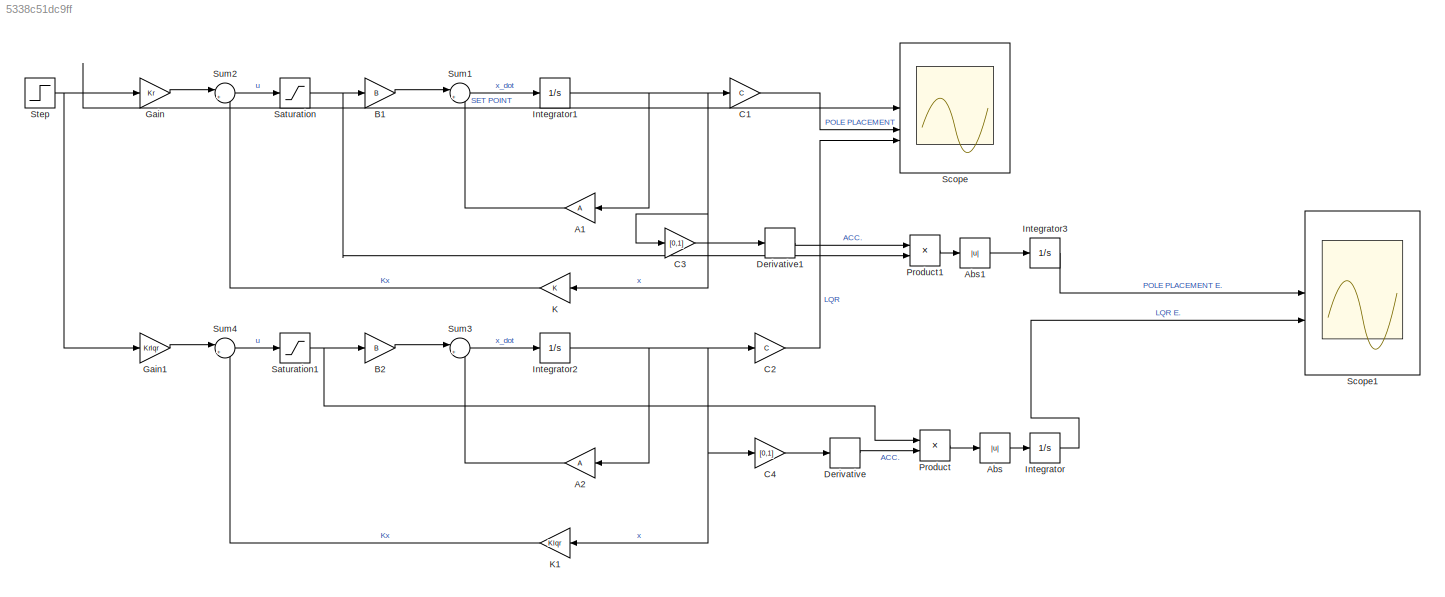
MODEL slx_5338c51dc9ff
KIND model
CONFIG AbsTol = auto
CONFIG EnableMultiTasking = off
CONFIG FixedStep = auto
CONFIG MaxStep = auto
CONFIG MinStep = auto
CONFIG RelTol = 1e-3
CONFIG SampleTimeConstraint = Unconstrained
CONFIG SolverName = VariableStepAuto
CONFIG StartTime = 0.0
CONFIG StopTime = 5
BLOCK [Gain] A1
  Gain = A
  Multiplication = Matrix(K*u)
  NameLocation = top
BLOCK [Gain] A2
  Gain = A
  Multiplication = Matrix(K*u)
  NameLocation = top
BLOCK [Abs] Abs
  SaturateOnIntegerOverflow = off
BLOCK [Abs] Abs1
  SaturateOnIntegerOverflow = off
BLOCK [Gain] B1
  Gain = B
  Multiplication = Matrix(K*u)
BLOCK [Gain] B2
  Gain = B
  Multiplication = Matrix(K*u)
BLOCK [Gain] C1
  Gain = C
  Multiplication = Matrix(K*u)
BLOCK [Gain] C2
  Gain = C
  Multiplication = Matrix(K*u)
BLOCK [Gain] C3
  Gain = [0,1]
  Multiplication = Matrix(K*u)
BLOCK [Gain] C4
  Gain = [0,1]
  Multiplication = Matrix(K*u)
BLOCK [Derivative] Derivative
BLOCK [Derivative] Derivative1
BLOCK [Gain] Gain
  Gain = Kr
BLOCK [Gain] Gain1
  Gain = Krlqr
BLOCK [Integrator] Integrator
BLOCK [Integrator] Integrator1
BLOCK [Integrator] Integrator2
BLOCK [Integrator] Integrator3
BLOCK [Gain] K
  Gain = K
  Multiplication = Matrix(K*u)
  NameLocation = top
BLOCK [Gain] K1
  Gain = Klqr
  Multiplication = Matrix(K*u)
  NameLocation = top
BLOCK [Product] Product
BLOCK [Product] Product1
BLOCK [Saturate] Saturation
  LowerLimit = -300
  UpperLimit = 300
BLOCK [Saturate] Saturation1
  LowerLimit = -300
  UpperLimit = 300
BLOCK [Scope] Scope
  Floating = off
  NumInputPorts = 3
  ScopeSpecificationString = Simulink.scopes.TimeScopeBlockCfg('CurrentConfiguration', extmgr.ConfigurationSet(extmgr.Configuration('Core','General UI',true),extmgr.Configuration('Core','Source UI',true),extmgr.Configuration('Sources','WiredSimulink',true),extmgr.Configuration('Visuals','Time Domain',true,'SerializedDisplays',{struct('MinYLimReal','-0.12522','MaxYLimReal','1.12697','YLabelReal','','MinYLimMag','0.00000','MaxY...<+1468ch>
BLOCK [Scope] Scope1
  Floating = off
  NumInputPorts = 2
  ScopeSpecificationString = Simulink.scopes.TimeScopeBlockCfg('CurrentConfiguration', extmgr.ConfigurationSet(extmgr.Configuration('Core','General UI',true),extmgr.Configuration('Core','Source UI',true),extmgr.Configuration('Sources','WiredSimulink',true,'DataLoggingVariableName','ScopeData1'),extmgr.Configuration('Visuals','Time Domain',true,'SerializedDisplays',{struct('MinYLimReal','-10325.55164','MaxYLimReal','92929.9647...<+1523ch>
BLOCK [Step] Step
  SampleTime = 0
BLOCK [Sum] Sum1
  Inputs = |++
BLOCK [Sum] Sum2
  Inputs = |+-
BLOCK [Sum] Sum3
  Inputs = |++
BLOCK [Sum] Sum4
  Inputs = |+-
LINE A1:1 -> Sum1:2
LINE A2:1 -> Sum3:2
LINE Abs1:1 -> Integrator3:1
LINE Abs:1 -> Integrator:1
LINE B1:1 -> Sum1:1
LINE B2:1 -> Sum3:1
LINE C1:1 -> Scope:2
LINE C2:1 -> Scope:3
LINE C3:1 -> Derivative1:1
LINE C4:1 -> Derivative:1
LINE Derivative1:1 -> Product1:1
LINE Derivative:1 -> Product:2
LINE Gain1:1 -> Sum4:1
LINE Gain:1 -> Sum2:1
NET Integrator1:1 -> A1:1, C1:1, C3:1, K:1
NET Integrator2:1 -> A2:1, C2:1, C4:1, K1:1
LINE Integrator3:1 -> Scope1:1
LINE Integrator:1 -> Scope1:2
LINE K1:1 -> Sum4:2
LINE K:1 -> Sum2:2
LINE Product1:1 -> Abs1:1
LINE Product:1 -> Abs:1
NET Saturation1:1 -> B2:1, Product:1
NET Saturation:1 -> B1:1, Product1:2
NET Step:1 -> Gain1:1, Gain:1, Scope:1
LINE Sum1:1 -> Integrator1:1
LINE Sum2:1 -> Saturation:1
LINE Sum3:1 -> Integrator2:1
LINE Sum4:1 -> Saturation1:1
note: NET lines group one-source signal fan-out (src -> all destinations, sorted); 1:1 wires keep LINE
